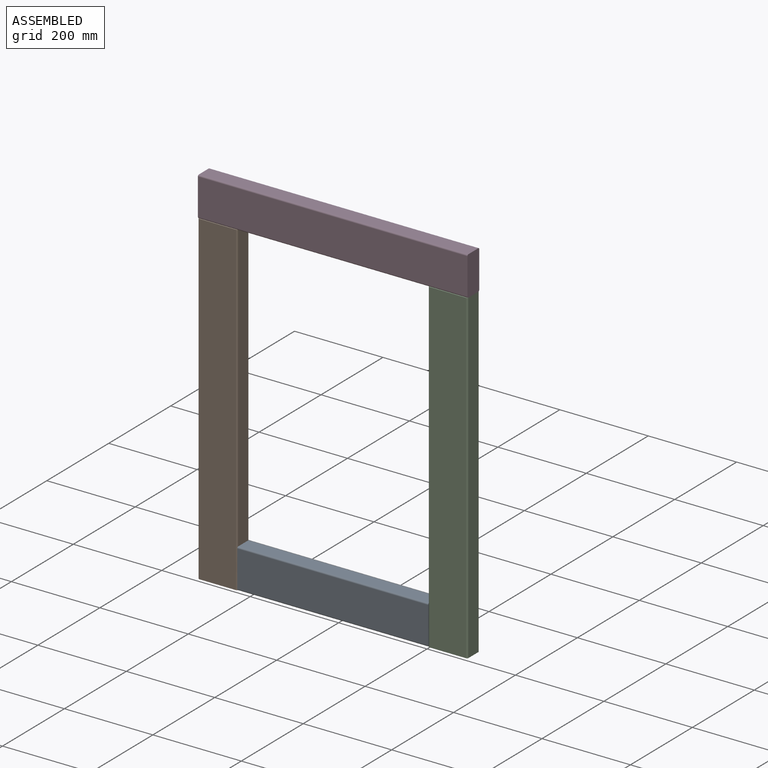
[diagram: assembled view]
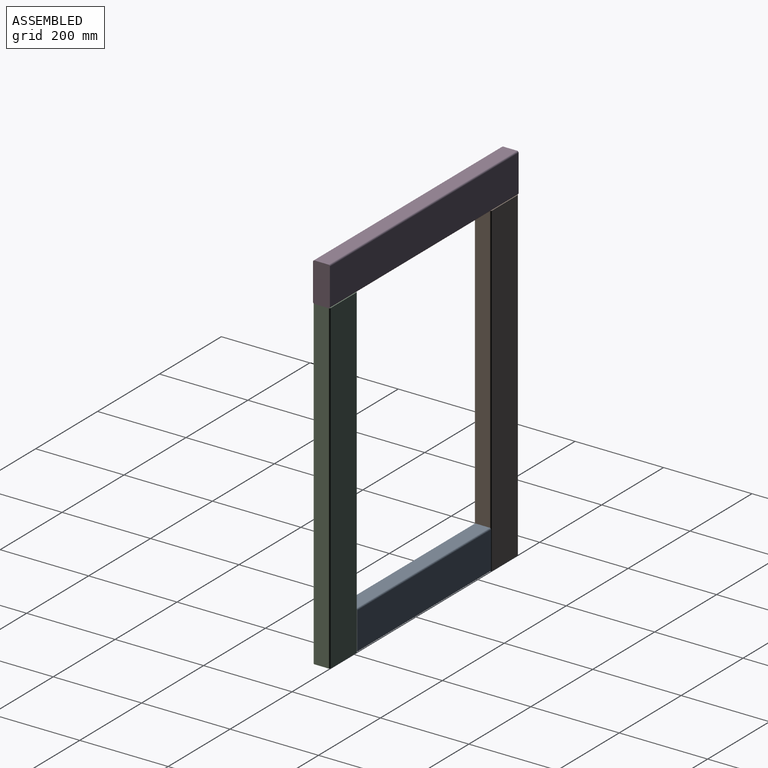
[diagram: assembled view, second angle]
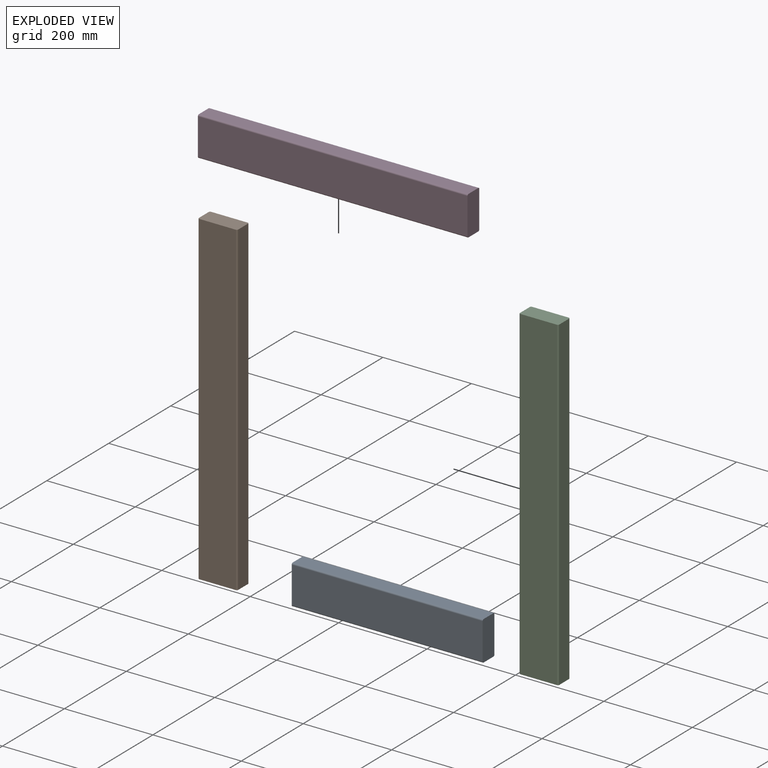
[diagram: exploded view]
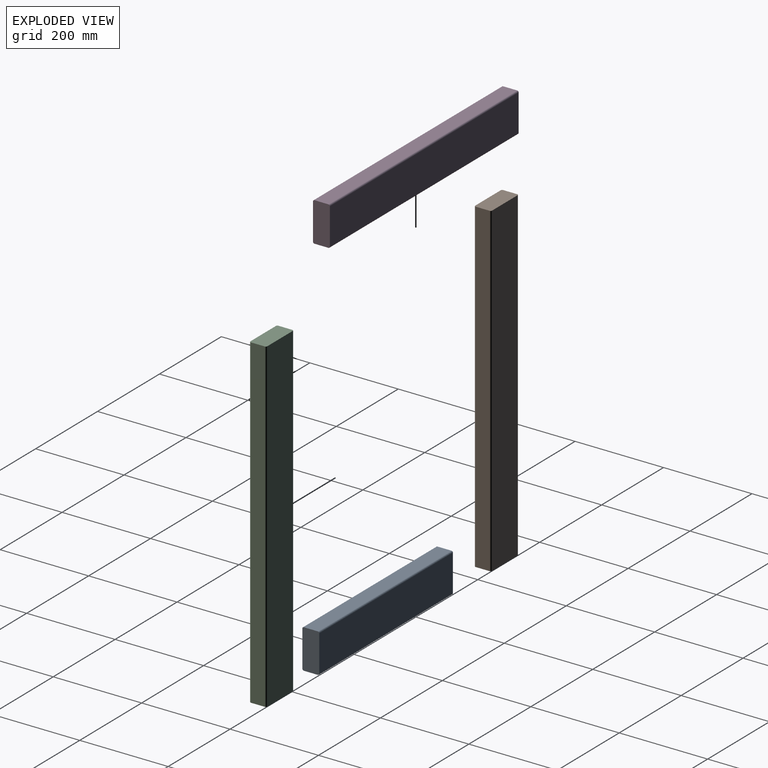
[diagram: exploded view, second angle]
ASSEMBLY  parts=4 mates=9
PART A: 10 faces, bbox 431.8x38.1x88.9 mm
  f0: plane 431.8x31.75mm, normal (0,0,-1), area 13709.6mm2, adj f1,f7,f8,f9
  f1: cylinder r=3.17mm len=431.8mm, axis (-1,0,0), area 2153.5mm2, adj f0,f2,f8,f9
  f2: plane 431.8x82.55mm, normal (0,1,0), area 35645.1mm2, adj f1,f3,f8,f9
  f3: cylinder r=3.17mm len=431.8mm, axis (-1,0,0), area 2153.5mm2, adj f2,f4,f8,f9
  f4: plane 431.8x31.75mm, normal (0,0,1), area 13709.6mm2, adj f3,f5,f8,f9
  f5: cylinder r=3.17mm len=431.8mm, axis (-1,0,0), area 2153.5mm2, adj f4,f6,f8,f9
  f6: plane 431.8x82.55mm, normal (0,-1,0), area 35645.1mm2, adj f5,f7,f8,f9
  f7: cylinder r=3.17mm len=431.8mm, axis (-1,0,0), area 2153.5mm2, adj f0,f6,f8,f9
  f8: plane 88.9x38.1mm, normal (1,0,0), area 3378.4mm2, adj f0,f1,f2,f3,f4,f5,f6,f7
  f9: plane 88.9x38.1mm, normal (-1,0,0), area 3378.4mm2, adj f0,f1,f2,f3,f4,f5,f6,f7
PART B: 10 faces, bbox 736.6x38.1x88.9 mm
  f0: plane 736.6x31.75mm, normal (0,0,-1), area 23387mm2, adj f1,f7,f8,f9
  f1: cylinder r=3.17mm len=736.6mm, axis (-1,0,0), area 3673.6mm2, adj f0,f2,f8,f9
  f2: plane 736.6x82.55mm, normal (0,1,0), area 60806.3mm2, adj f1,f3,f8,f9
  f3: cylinder r=3.17mm len=736.6mm, axis (-1,0,0), area 3673.6mm2, adj f2,f4,f8,f9
  f4: plane 736.6x31.75mm, normal (0,0,1), area 23387mm2, adj f3,f5,f8,f9
  f5: cylinder r=3.17mm len=736.6mm, axis (-1,0,0), area 3673.6mm2, adj f4,f6,f8,f9
  f6: plane 736.6x82.55mm, normal (0,-1,0), area 60806.3mm2, adj f5,f7,f8,f9
  f7: cylinder r=3.17mm len=736.6mm, axis (-1,0,0), area 3673.6mm2, adj f0,f6,f8,f9
  f8: plane 88.9x38.1mm, normal (1,0,0), area 3378.4mm2, adj f0,f1,f2,f3,f4,f5,f6,f7
  f9: plane 88.9x38.1mm, normal (-1,0,0), area 3378.4mm2, adj f0,f1,f2,f3,f4,f5,f6,f7
PART C: same geometry as B
PART D: 10 faces, bbox 609.6x38.1x88.9 mm
  f0: plane 609.6x31.75mm, normal (0,0,-1), area 19354.8mm2, adj f1,f7,f8,f9
  f1: cylinder r=3.17mm len=609.6mm, axis (-1,0,0), area 3040.2mm2, adj f0,f2,f8,f9
  f2: plane 609.6x82.55mm, normal (0,1,0), area 50322.5mm2, adj f1,f3,f8,f9
  f3: cylinder r=3.17mm len=609.6mm, axis (-1,0,0), area 3040.2mm2, adj f2,f4,f8,f9
  f4: plane 609.6x31.75mm, normal (0,0,1), area 19354.8mm2, adj f3,f5,f8,f9
  f5: cylinder r=3.17mm len=609.6mm, axis (-1,0,0), area 3040.2mm2, adj f4,f6,f8,f9
  f6: plane 609.6x82.55mm, normal (0,-1,0), area 50322.5mm2, adj f5,f7,f8,f9
  f7: cylinder r=3.17mm len=609.6mm, axis (-1,0,0), area 3040.2mm2, adj f0,f6,f8,f9
  f8: plane 88.9x38.1mm, normal (1,0,0), area 3378.4mm2, adj f0,f1,f2,f3,f4,f5,f6,f7
  f9: plane 88.9x38.1mm, normal (-1,0,0), area 3378.4mm2, adj f0,f1,f2,f3,f4,f5,f6,f7
PLACE A t=(0,0,44.45)mm
PLACE B rot(axis=(0,1,0),90deg) t=(-260.35,0,368.3)mm
PLACE C rot(axis=(0.71,0,-0.71),180deg) t=(260.35,0,368.3)mm
PLACE D t=(0,0,781.05)mm
MATE planar C.f4 <-> A.f8  axis (-1,0,0) through (215.9,0,368.3)mm
MATE planar B.f8 <-> A.f0  axis (0,0,-1) through (-260.35,0,0)mm
MATE planar C.f2 <-> A.f6  axis (0,-1,0) through (260.35,-19.05,368.3)mm
MATE planar B.f9 <-> D.f0  axis (0,0,1) through (-260.35,0,736.6)mm
MATE planar C.f8 <-> A.f0  axis (0,0,-1) through (260.35,0,0)mm
MATE planar D.f9 <-> B.f0  axis (-1,0,0) through (-304.8,0,781.05)mm
MATE planar B.f6 <-> D.f6  axis (0,-1,0) through (-260.35,-19.05,368.3)mm
MATE planar B.f6 <-> A.f6  axis (0,-1,0) through (-260.35,-19.05,368.3)mm
MATE planar B.f4 <-> A.f9  axis (1,0,0) through (-215.9,0,368.3)mm
